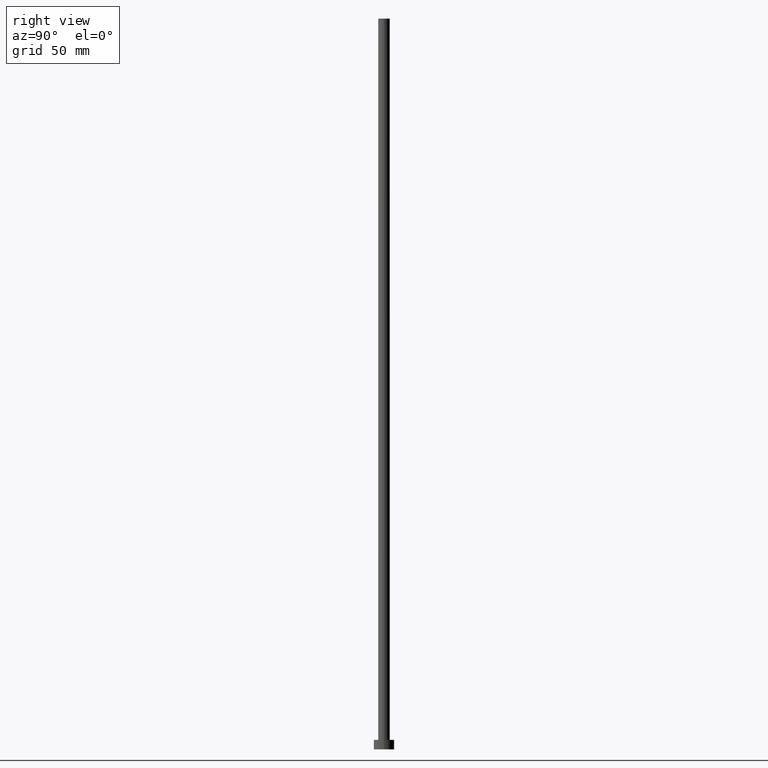
[diagram: clean part render]
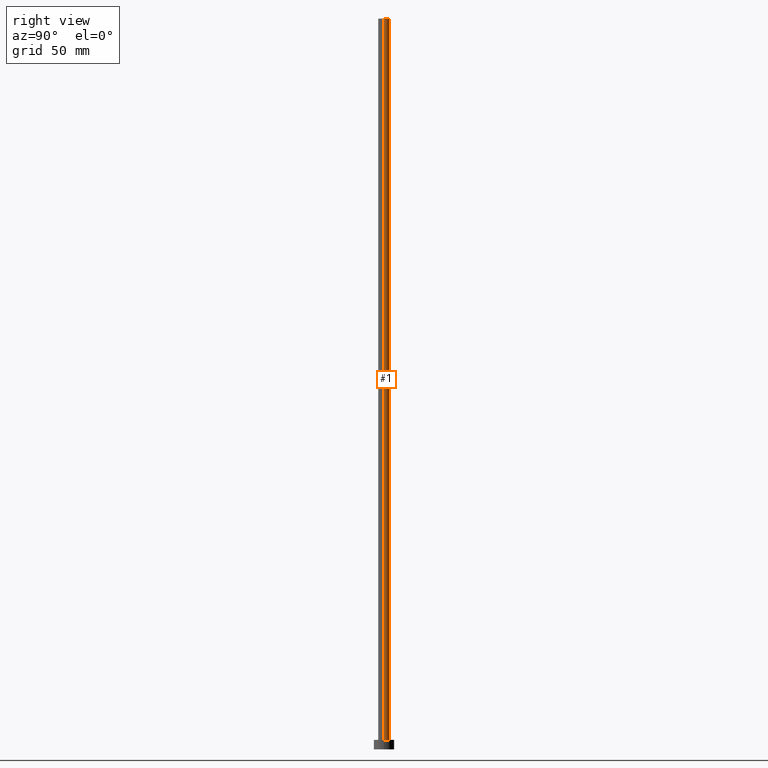
[diagram: same view with one face highlighted and labeled with its STEP entity id]
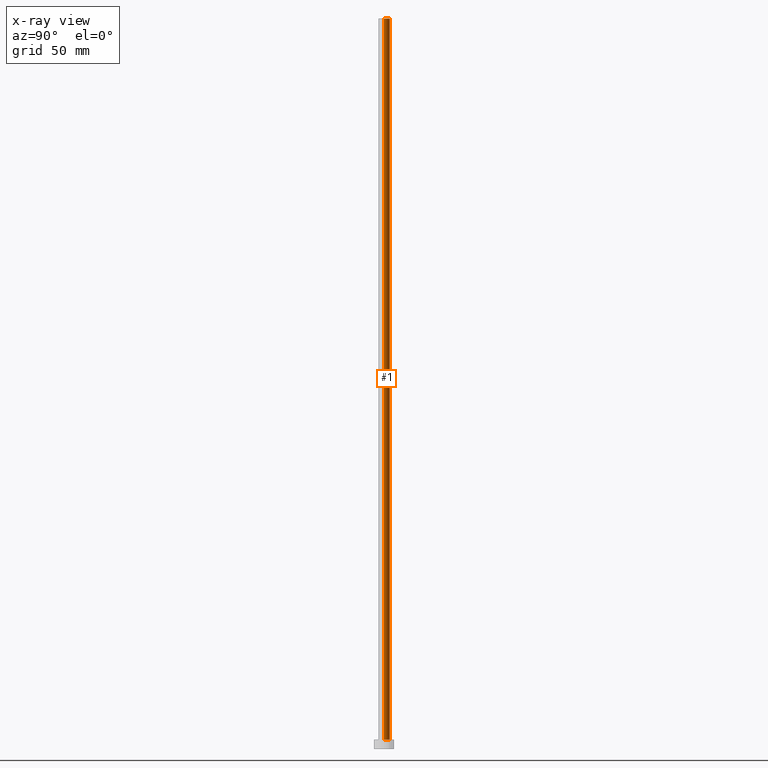
[diagram: x-ray of the same camera — body ghosted, the highlighted face saturated]
A machine part, right view. The second image highlights one B-rep face of the part: STEP entity #1.
The next image is the same camera in x-ray: the body ghosted, the highlighted face saturated — about 0% of this face is hidden behind the body in this view.
In plain terms, the highlighted cylindrical surface (edge-blend (fillet) strip) has radius 4 mm, axis along (-0, -0, -1).
Its self-contained STEP definition (entity closure, byte-faithful):
#1 = ADVANCED_FACE ( 'NONE', ( #161 ), #162, .T. ) ;
#14 = DIRECTION ( 'NONE',  ( 1.000000000000000000, 0.000000000000000000, 0.000000000000000000 ) ) ;
#15 = DIRECTION ( 'NONE',  ( 0.000000000000000000, 0.000000000000000000, 1.000000000000000000 ) ) ;
#16 = VECTOR ( 'NONE', #68, 1000.000000000000000 ) ;
#17 = VERTEX_POINT ( 'NONE', #128 ) ;
#29 = AXIS2_PLACEMENT_3D ( 'NONE', #228, #152, #14 ) ;
#30 = CARTESIAN_POINT ( 'NONE',  ( -4.000000000000000000, 0.000000000000000000, 500.0000000000000000 ) ) ;
#38 = EDGE_LOOP ( 'NONE', ( #176, #198, #52, #142 ) ) ;
#46 = CARTESIAN_POINT ( 'NONE',  ( -4.000000000000000000, 0.000000000000000000, 500.0000000000000000 ) ) ;
#52 = ORIENTED_EDGE ( 'NONE', *, *, #227, .T. ) ;
#55 = CIRCLE ( 'NONE', #71, 4.000000000000000000 ) ;
#59 = EDGE_CURVE ( 'NONE', #154, #17, #70, .T. ) ;
#68 = DIRECTION ( 'NONE',  ( -0.000000000000000000, -0.000000000000000000, -1.000000000000000000 ) ) ;
#70 = LINE ( 'NONE', #46, #16 ) ;
#71 = AXIS2_PLACEMENT_3D ( 'NONE', #156, #15, #91 ) ;
#78 = DIRECTION ( 'NONE',  ( -0.000000000000000000, -0.000000000000000000, -1.000000000000000000 ) ) ;
#86 = CARTESIAN_POINT ( 'NONE',  ( 4.000000000000000000, 4.898587196589412829E-16, 500.0000000000000000 ) ) ;
#91 = DIRECTION ( 'NONE',  ( 1.000000000000000000, 0.000000000000000000, 0.000000000000000000 ) ) ;
#102 = DIRECTION ( 'NONE',  ( -0.000000000000000000, -0.000000000000000000, -1.000000000000000000 ) ) ;
#104 = DIRECTION ( 'NONE',  ( -1.000000000000000000, 0.000000000000000000, 0.000000000000000000 ) ) ;
#105 = CARTESIAN_POINT ( 'NONE',  ( 0.000000000000000000, 0.000000000000000000, 500.0000000000000000 ) ) ;
#109 = CARTESIAN_POINT ( 'NONE',  ( 4.000000000000000000, 4.898587196589412829E-16, 6.500000000000000000 ) ) ;
#125 = VERTEX_POINT ( 'NONE', #86 ) ;
#128 = CARTESIAN_POINT ( 'NONE',  ( -4.000000000000000000, 0.000000000000000000, 6.500000000000000000 ) ) ;
#138 = VERTEX_POINT ( 'NONE', #109 ) ;
#142 = ORIENTED_EDGE ( 'NONE', *, *, #59, .F. ) ;
#149 = EDGE_CURVE ( 'NONE', #125, #154, #194, .T. ) ;
#152 = DIRECTION ( 'NONE',  ( 0.000000000000000000, 0.000000000000000000, 1.000000000000000000 ) ) ;
#154 = VERTEX_POINT ( 'NONE', #30 ) ;
#156 = CARTESIAN_POINT ( 'NONE',  ( 0.000000000000000000, 0.000000000000000000, 6.500000000000000000 ) ) ;
#161 = FACE_OUTER_BOUND ( 'NONE', #38, .T. ) ;
#162 = CYLINDRICAL_SURFACE ( 'NONE', #223, 4.000000000000000000 ) ;
#171 = CARTESIAN_POINT ( 'NONE',  ( 4.000000000000000000, 4.898587196589412829E-16, 500.0000000000000000 ) ) ;
#173 = LINE ( 'NONE', #171, #205 ) ;
#175 = EDGE_CURVE ( 'NONE', #125, #138, #173, .T. ) ;
#176 = ORIENTED_EDGE ( 'NONE', *, *, #149, .F. ) ;
#194 = CIRCLE ( 'NONE', #29, 4.000000000000000000 ) ;
#198 = ORIENTED_EDGE ( 'NONE', *, *, #175, .T. ) ;
#205 = VECTOR ( 'NONE', #78, 1000.000000000000000 ) ;
#223 = AXIS2_PLACEMENT_3D ( 'NONE', #105, #102, #104 ) ;
#227 = EDGE_CURVE ( 'NONE', #138, #17, #55, .T. ) ;
#228 = CARTESIAN_POINT ( 'NONE',  ( 0.000000000000000000, 0.000000000000000000, 500.0000000000000000 ) ) ;